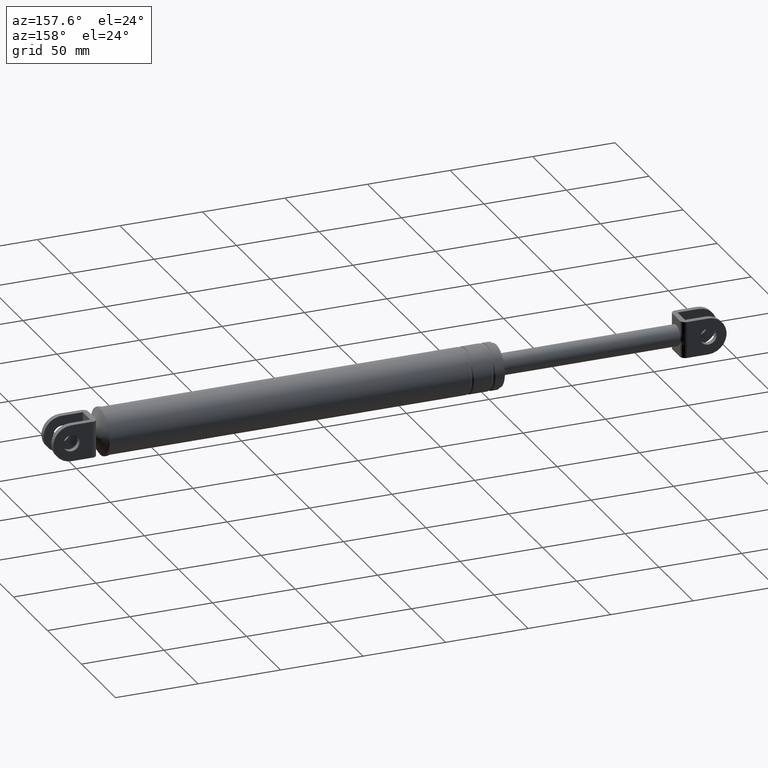
[diagram: clean part render]
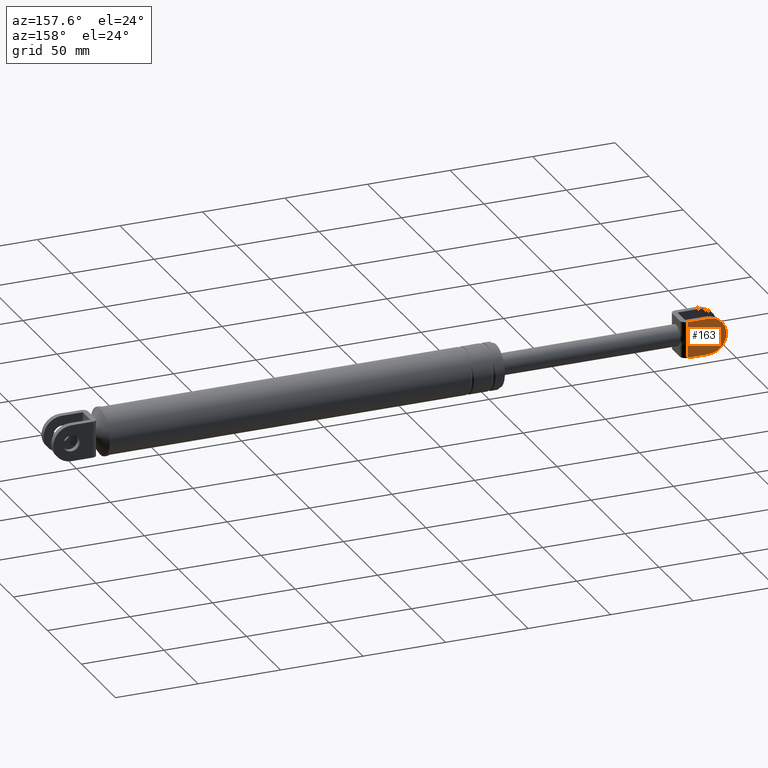
[diagram: same view with one face highlighted and labeled with its STEP entity id]
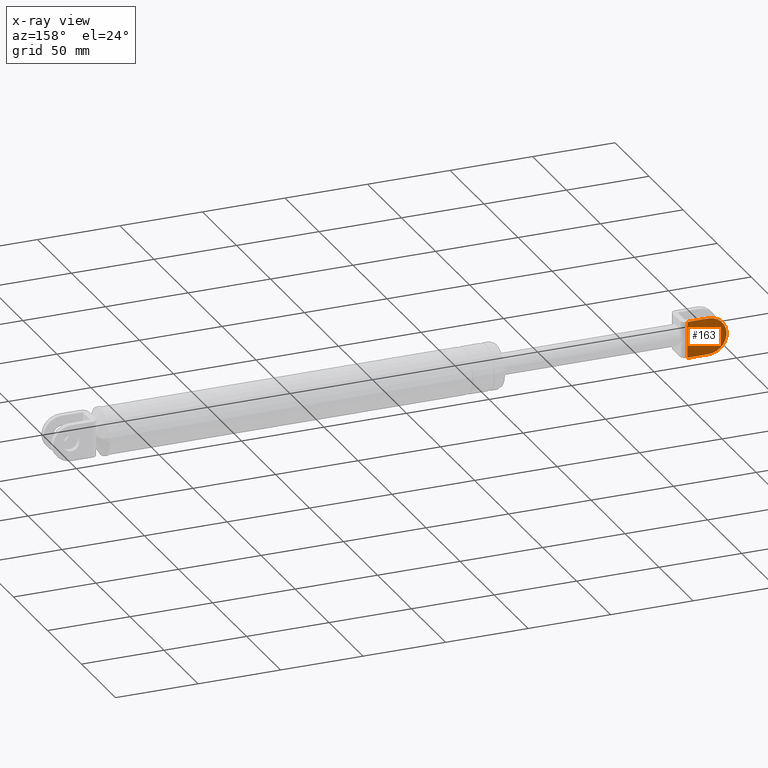
[diagram: x-ray of the same camera — body ghosted, the highlighted face saturated]
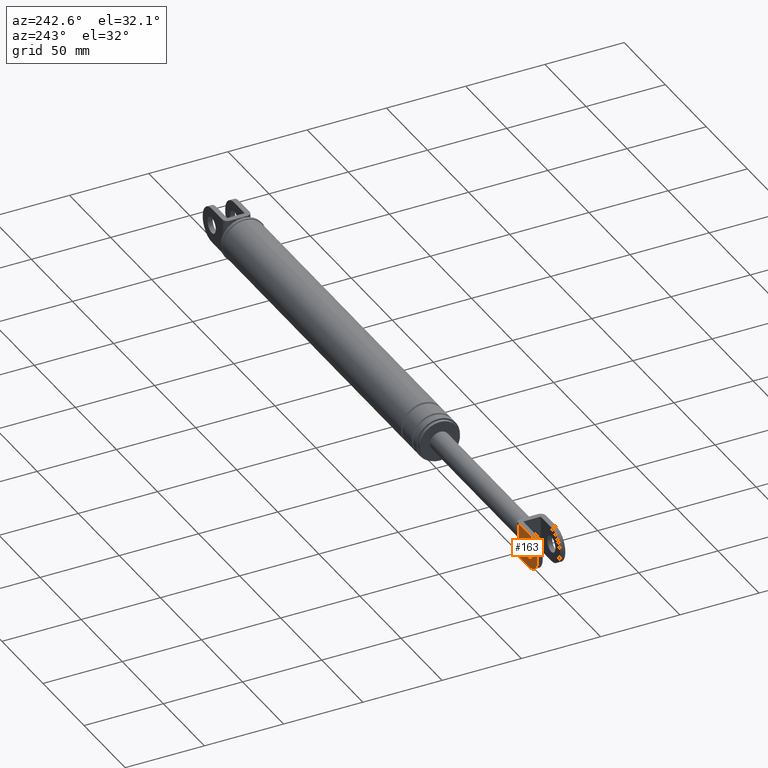
[diagram: same view with one face highlighted and labeled with its STEP entity id]
A machine part, auxiliary view. The second image highlights one B-rep face of the part: STEP entity #163.
The next image is the same camera in x-ray: the body ghosted, the highlighted face saturated — about 0% of this face is hidden behind the body in this view.
A second angle (auxiliary view) of the same face is appended — the face is thin or edge-on in the first view.
In plain terms, the highlighted planar face has unit normal (0, 1, 0).
Its self-contained STEP definition (entity closure, byte-faithful):
#163=ADVANCED_FACE('',(#696,#697),#695,.T.);
#695=PLANE('',#1866);
#696=FACE_OUTER_BOUND('',#1867,.T.);
#697=FACE_BOUND('',#1868,.T.);
#1863=CARTESIAN_POINT('',(7.27081911668E+000,8.69999700000E+000,1.92925493158E+002));
#1864=DIRECTION('',(-0.00000000000E+000,1.00000000000E+000,0.00000000000E+000));
#1865=DIRECTION('',(1.00000000000E+000,0.00000000000E+000,0.00000000000E+000));
#1866=AXIS2_PLACEMENT_3D('',#1863,#1864,#1865);
#1867=EDGE_LOOP('',(#2177,#2178,#2179,#2180,#2181,#2182));
#1868=EDGE_LOOP('',(#2183,#2184));
#2177=ORIENTED_EDGE('',*,*,#2368,.F.);
#2178=ORIENTED_EDGE('',*,*,#2381,.T.);
#2179=ORIENTED_EDGE('',*,*,#2343,.T.);
#2180=ORIENTED_EDGE('',*,*,#2336,.T.);
#2181=ORIENTED_EDGE('',*,*,#2382,.T.);
#2182=ORIENTED_EDGE('',*,*,#2383,.F.);
#2183=ORIENTED_EDGE('',*,*,#2384,.T.);
#2184=ORIENTED_EDGE('',*,*,#2385,.T.);
#2336=EDGE_CURVE('',#3027,#3019,#3028,.T.);
#2343=EDGE_CURVE('',#3075,#3027,#3076,.T.);
#2368=EDGE_CURVE('',#3236,#3243,#3244,.T.);
#2381=EDGE_CURVE('',#3236,#3075,#3330,.T.);
#2382=EDGE_CURVE('',#3019,#3336,#3337,.T.);
#2383=EDGE_CURVE('',#3243,#3336,#3343,.T.);
#2384=EDGE_CURVE('',#3349,#3350,#3351,.T.);
#2385=EDGE_CURVE('',#3350,#3349,#3357,.T.);
#3019=VERTEX_POINT('',#3823);
#3027=VERTEX_POINT('',#3829);
#3028=LINE('',#3830,#3831);
#3075=VERTEX_POINT('',#3859);
#3076=(BOUNDED_CURVE() B_SPLINE_CURVE(3,(#3860,#3861,#3862,#3863,#3864,#3865,#3866,#3867,#3868,#3869),.UNSPECIFIED.,.F.,.F.) B_SPLINE_CURVE_WITH_KNOTS((4,2,2,2,4),(0.00000000000E+000,1.48458878572E-003,2.96917757145E-003,4.45376635717E-003,5.93835514290E-003),.UNSPECIFIED.) CURVE() GEOMETRIC_REPRESENTATION_ITEM() RATIONAL_B_SPLINE_CURVE((1.00000000000E+000,1.00000000000E+000,1.00000000000E+000,1.00000000000E+000,1.00000000000E+000,1.00000000000E+000,1.00000000000E+000,1.00000000000E+000,1.00000000000E+000,1.00000000000E+000)) REPRESENTATION_ITEM('') );
#3236=VERTEX_POINT('',#3973);
#3243=VERTEX_POINT('',#3978);
#3244=LINE('',#3979,#3980);
#3330=LINE('',#4032,#4033);
#3336=VERTEX_POINT('',#4035);
#3337=LINE('',#4036,#4037);
#3343=CIRCLE('',#4042,1.10000000000E+001);
#3349=VERTEX_POINT('',#4043);
#3350=VERTEX_POINT('',#4044);
#3351=CIRCLE('',#4048,5.00000000000E+000);
#3357=CIRCLE('',#4052,5.00000000000E+000);
#3823=CARTESIAN_POINT('',(3.34597353584E+001,8.69999700000E+000,1.68725493158E+002));
#3829=CARTESIAN_POINT('',(3.34597353584E+001,8.69999700000E+000,1.76756902078E+002));
#3830=CARTESIAN_POINT('',(3.34597353584E+001,8.69999700000E+000,1.76756902078E+002));
#3831=VECTOR('',#3832,8.03140892005E+000);
#3832=DIRECTION('',(0.00000000000E+000,0.00000000000E+000,-1.00000000000E+000));
#3859=CARTESIAN_POINT('',(3.34597353584E+001,8.69999700000E+000,1.82694084238E+002));
#3860=CARTESIAN_POINT('',(3.34597353584E+001,8.69999700000E+000,1.82694084238E+002));
#3861=CARTESIAN_POINT('',(3.34597353584E+001,8.69999700000E+000,1.82199221117E+002));
#3862=CARTESIAN_POINT('',(3.34852751158E+001,8.69999700000E+000,1.81704914635E+002));
#3863=CARTESIAN_POINT('',(3.35304982541E+001,8.69999700000E+000,1.80716203161E+002));
#3864=CARTESIAN_POINT('',(3.35488382130E+001,8.69999700000E+000,1.80221747896E+002));
#3865=CARTESIAN_POINT('',(3.35488977756E+001,8.69999700000E+000,1.79231984116E+002));
#3866=CARTESIAN_POINT('',(3.35305831540E+001,8.69999700000E+000,1.78736747141E+002));
#3867=CARTESIAN_POINT('',(3.34853298865E+001,8.69999700000E+000,1.77747161636E+002));
#3868=CARTESIAN_POINT('',(3.34597353584E+001,8.69999700000E+000,1.77252470645E+002));
#3869=CARTESIAN_POINT('',(3.34597353584E+001,8.69999700000E+000,1.76756902078E+002));
#3973=CARTESIAN_POINT('',(3.34597353584E+001,8.69999700000E+000,1.90725493158E+002));
#3978=CARTESIAN_POINT('',(2.06597343985E+001,8.69999700000E+000,1.90725493158E+002));
#3979=CARTESIAN_POINT('',(3.34597353584E+001,8.69999700000E+000,1.90725493158E+002));
#3980=VECTOR('',#3981,1.28000009599E+001);
#3981=DIRECTION('',(-1.00000000000E+000,0.00000000000E+000,0.00000000000E+000));
#4032=CARTESIAN_POINT('',(3.34597353584E+001,8.69999700000E+000,1.90725493158E+002));
#4033=VECTOR('',#4034,8.03140892004E+000);
#4034=DIRECTION('',(0.00000000000E+000,0.00000000000E+000,-1.00000000000E+000));
#4035=CARTESIAN_POINT('',(2.06597343985E+001,8.69999700000E+000,1.68725493158E+002));
#4036=CARTESIAN_POINT('',(3.34597353584E+001,8.69999700000E+000,1.68725493158E+002));
#4037=VECTOR('',#4038,1.28000009599E+001);
#4038=DIRECTION('',(-1.00000000000E+000,0.00000000000E+000,0.00000000000E+000));
#4039=CARTESIAN_POINT('',(2.06597353584E+001,8.69999700000E+000,1.79725493158E+002));
#4040=DIRECTION('',(0.00000000000E+000,-1.00000000000E+000,0.00000000000E+000));
#4041=DIRECTION('',(8.72664665379E-008,-0.00000000000E+000,-1.00000000000E+000));
#4042=AXIS2_PLACEMENT_3D('',#4039,#4040,#4041);
#4043=CARTESIAN_POINT('',(2.06597353584E+001,8.69999700000E+000,1.74725493158E+002));
#4044=CARTESIAN_POINT('',(2.06597353584E+001,8.69999700000E+000,1.84725493158E+002));
#4045=CARTESIAN_POINT('',(2.06597353584E+001,8.69999700000E+000,1.79725493158E+002));
#4046=DIRECTION('',(1.25607396695E-016,-1.00000000000E+000,0.00000000000E+000));
#4047=DIRECTION('',(-0.00000000000E+000,-0.00000000000E+000,-1.00000000000E+000));
#4048=AXIS2_PLACEMENT_3D('',#4045,#4046,#4047);
#4049=CARTESIAN_POINT('',(2.06597353584E+001,8.69999700000E+000,1.79725493158E+002));
#4050=DIRECTION('',(1.25607396695E-016,-1.00000000000E+000,0.00000000000E+000));
#4051=DIRECTION('',(-0.00000000000E+000,-0.00000000000E+000,-1.00000000000E+000));
#4052=AXIS2_PLACEMENT_3D('',#4049,#4050,#4051);